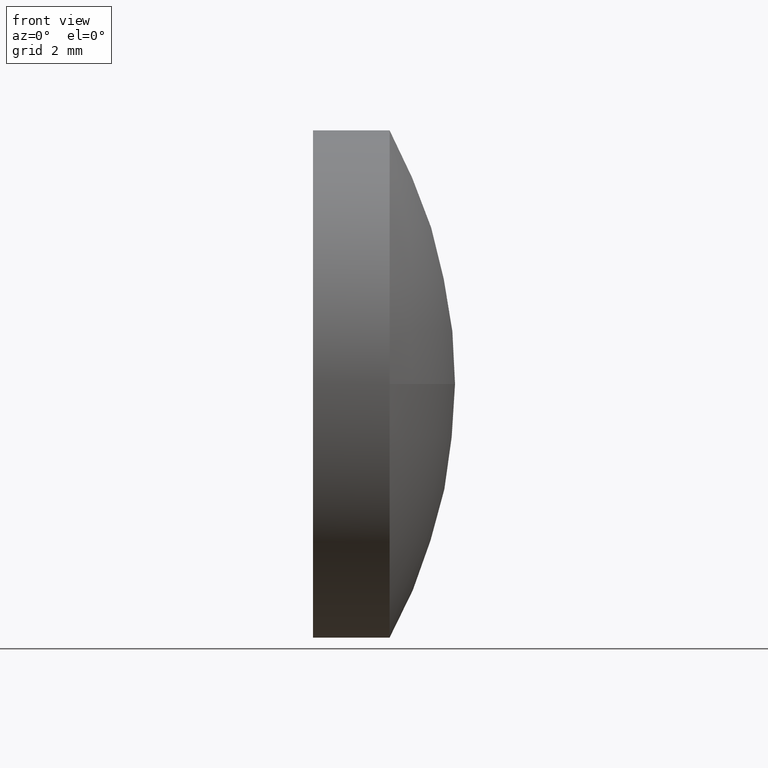
[diagram: clean part render]
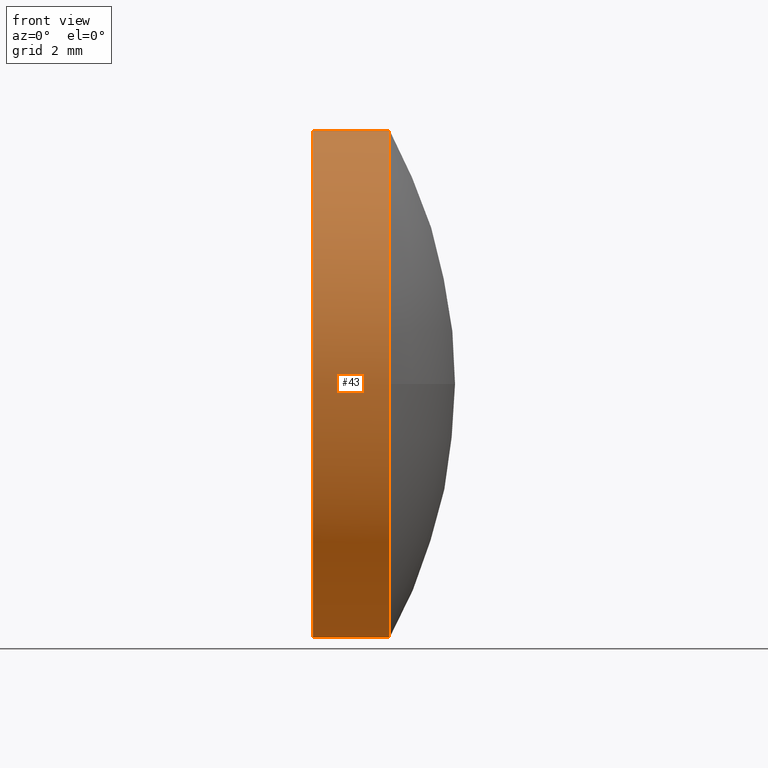
[diagram: same view with one face highlighted and labeled with its STEP entity id]
A machine part, front view. The second image highlights one B-rep face of the part: STEP entity #43.
In plain terms, the highlighted cylindrical surface (partial cylindrical patch) has radius 5 mm, axis along (-1, -0, -0).
Its self-contained STEP definition (entity closure, byte-faithful):
#2 = CARTESIAN_POINT ( 'NONE',  ( 652.1120024651052100, 189.5627684869003800, 0.0000000000000000000 ) ) ;
#12 = EDGE_CURVE ( 'NONE', #135, #75, #102, .T. ) ;
#17 = EDGE_LOOP ( 'NONE', ( #60, #112, #68, #42, #29 ) ) ;
#19 = DIRECTION ( 'NONE',  ( -1.000000000000000000, -0.0000000000000000000, -0.0000000000000000000 ) ) ;
#21 = DIRECTION ( 'NONE',  ( 0.0000000000000000000, 0.0000000000000000000, 1.000000000000000000 ) ) ;
#24 = EDGE_CURVE ( 'NONE', #142, #174, #185, .T. ) ;
#29 = ORIENTED_EDGE ( 'NONE', *, *, #59, .F. ) ;
#42 = ORIENTED_EDGE ( 'NONE', *, *, #55, .T. ) ;
#43 = ADVANCED_FACE ( 'NONE', ( #136 ), #47, .T. ) ;
#47 = CYLINDRICAL_SURFACE ( 'NONE', #122, 5.000000000000004400 ) ;
#54 = LINE ( 'NONE', #176, #165 ) ;
#55 = EDGE_CURVE ( 'NONE', #174, #107, #54, .T. ) ;
#58 = CIRCLE ( 'NONE', #81, 5.000000000000004400 ) ;
#59 = EDGE_CURVE ( 'NONE', #75, #107, #131, .T. ) ;
#60 = ORIENTED_EDGE ( 'NONE', *, *, #12, .F. ) ;
#62 = CARTESIAN_POINT ( 'NONE',  ( 650.6020024651052200, 189.5627684869003800, -5.000000000000004400 ) ) ;
#68 = ORIENTED_EDGE ( 'NONE', *, *, #24, .T. ) ;
#74 = DIRECTION ( 'NONE',  ( -1.000000000000000000, -0.0000000000000000000, -0.0000000000000000000 ) ) ;
#75 = VERTEX_POINT ( 'NONE', #62 ) ;
#80 = CARTESIAN_POINT ( 'NONE',  ( 650.6020024651052200, 189.5627684869003800, 0.0000000000000000000 ) ) ;
#81 = AXIS2_PLACEMENT_3D ( 'NONE', #158, #181, #101 ) ;
#82 = VECTOR ( 'NONE', #163, 1000.000000000000000 ) ;
#90 = CARTESIAN_POINT ( 'NONE',  ( 649.6604519933307500, 189.5627684869003800, -5.000000000000004400 ) ) ;
#92 = DIRECTION ( 'NONE',  ( -1.000000000000000000, -0.0000000000000000000, -0.0000000000000000000 ) ) ;
#98 = DIRECTION ( 'NONE',  ( -1.000000000000000000, -0.0000000000000000000, -0.0000000000000000000 ) ) ;
#101 = DIRECTION ( 'NONE',  ( 0.0000000000000000000, 0.0000000000000000000, 1.000000000000000000 ) ) ;
#102 = LINE ( 'NONE', #90, #82 ) ;
#107 = VERTEX_POINT ( 'NONE', #179 ) ;
#108 = CARTESIAN_POINT ( 'NONE',  ( 649.6604519933307500, 189.5627684869003800, 0.0000000000000000000 ) ) ;
#112 = ORIENTED_EDGE ( 'NONE', *, *, #151, .T. ) ;
#122 = AXIS2_PLACEMENT_3D ( 'NONE', #108, #74, #21 ) ;
#127 = DIRECTION ( 'NONE',  ( 0.0000000000000000000, 0.0000000000000000000, 1.000000000000000000 ) ) ;
#131 = CIRCLE ( 'NONE', #134, 5.000000000000004400 ) ;
#134 = AXIS2_PLACEMENT_3D ( 'NONE', #80, #19, #127 ) ;
#135 = VERTEX_POINT ( 'NONE', #139 ) ;
#136 = FACE_OUTER_BOUND ( 'NONE', #17, .T. ) ;
#139 = CARTESIAN_POINT ( 'NONE',  ( 652.1120024651052100, 189.5627684869003800, -5.000000000000004400 ) ) ;
#142 = VERTEX_POINT ( 'NONE', #152 ) ;
#151 = EDGE_CURVE ( 'NONE', #135, #142, #58, .T. ) ;
#152 = CARTESIAN_POINT ( 'NONE',  ( 652.1120024651052100, 184.5627684869003500, -6.123233995736773200E-016 ) ) ;
#158 = CARTESIAN_POINT ( 'NONE',  ( 652.1120024651052100, 189.5627684869003800, 0.0000000000000000000 ) ) ;
#162 = DIRECTION ( 'NONE',  ( 0.0000000000000000000, 0.0000000000000000000, 1.000000000000000000 ) ) ;
#163 = DIRECTION ( 'NONE',  ( -1.000000000000000000, -0.0000000000000000000, -0.0000000000000000000 ) ) ;
#165 = VECTOR ( 'NONE', #98, 1000.000000000000000 ) ;
#166 = CARTESIAN_POINT ( 'NONE',  ( 652.1120024651052100, 189.5627684869003800, 5.000000000000004400 ) ) ;
#174 = VERTEX_POINT ( 'NONE', #166 ) ;
#176 = CARTESIAN_POINT ( 'NONE',  ( 649.6604519933307500, 189.5627684869003800, 5.000000000000004400 ) ) ;
#179 = CARTESIAN_POINT ( 'NONE',  ( 650.6020024651052200, 189.5627684869003800, 5.000000000000004400 ) ) ;
#181 = DIRECTION ( 'NONE',  ( -1.000000000000000000, -0.0000000000000000000, -0.0000000000000000000 ) ) ;
#183 = AXIS2_PLACEMENT_3D ( 'NONE', #2, #92, #162 ) ;
#185 = CIRCLE ( 'NONE', #183, 5.000000000000004400 ) ;